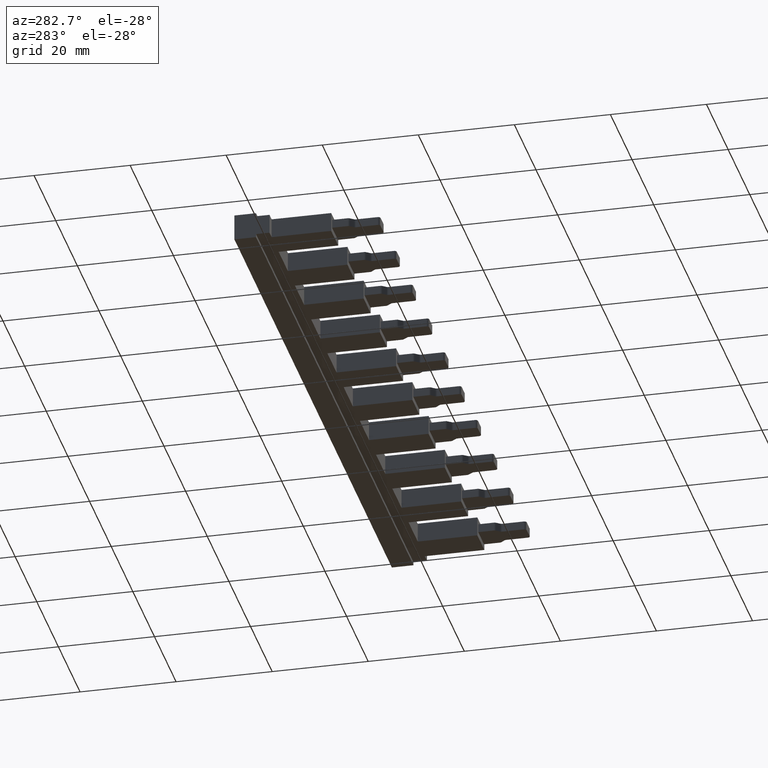
[diagram: clean part render]
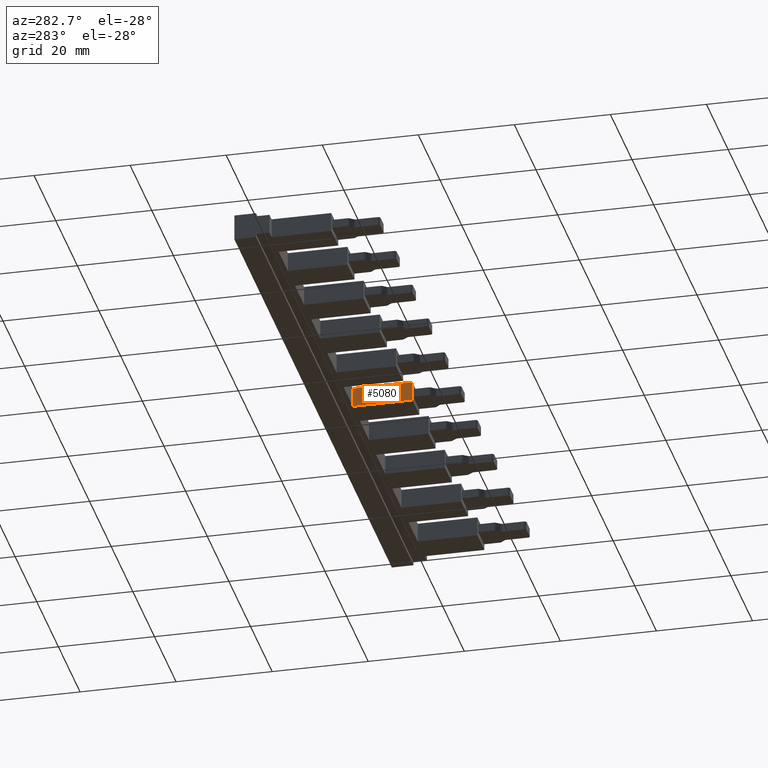
[diagram: same view with one face highlighted and labeled with its STEP entity id]
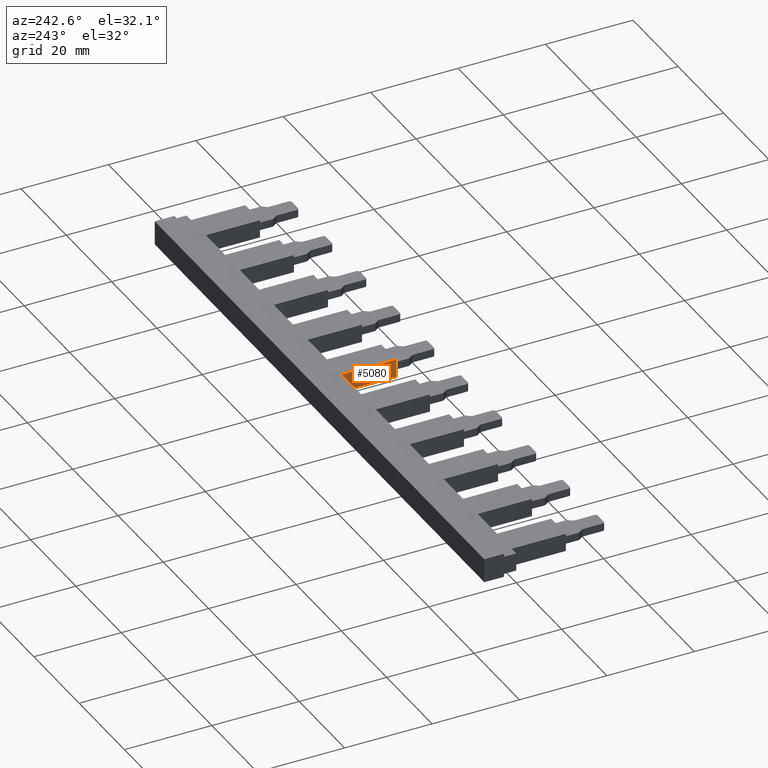
[diagram: same view with one face highlighted and labeled with its STEP entity id]
A machine part, auxiliary view. The second image highlights one B-rep face of the part: STEP entity #5080.
A second angle (auxiliary view) of the same face is appended — the face is thin or edge-on in the first view.
In plain terms, the highlighted planar face has unit normal (1, -0, 0).
Its self-contained STEP definition (entity closure, byte-faithful):
#138 = AXIS2_PLACEMENT_3D ( 'NONE', #2887, #2878, #2917 ) ;
#245 = VECTOR ( 'NONE', #3173, 1000.000000000000000 ) ;
#254 = VECTOR ( 'NONE', #3464, 1000.000000000000000 ) ;
#359 = VECTOR ( 'NONE', #3503, 1000.000000000000000 ) ;
#696 = VECTOR ( 'NONE', #5933, 1000.000000000000000 ) ;
#1047 = EDGE_LOOP ( 'NONE', ( #4134, #4230, #4204, #4227 ) ) ;
#1592 = CARTESIAN_POINT ( 'NONE',  ( 77.00000000000000000, -12.40000000000000200, 0.0000000000000000000 ) ) ;
#1633 = CARTESIAN_POINT ( 'NONE',  ( 77.00000000000000000, 0.0000000000000000000, 4.099999999999999600 ) ) ;
#1646 = CARTESIAN_POINT ( 'NONE',  ( 77.00000000000000000, 0.0000000000000000000, 0.0000000000000000000 ) ) ;
#1657 = CARTESIAN_POINT ( 'NONE',  ( 77.00000000000000000, -12.40000000000000200, 4.099999999999999600 ) ) ;
#2878 = DIRECTION ( 'NONE',  ( 1.000000000000000000, -0.0000000000000000000, 0.0000000000000000000 ) ) ;
#2879 = FACE_OUTER_BOUND ( 'NONE', #1047, .T. ) ;
#2887 = CARTESIAN_POINT ( 'NONE',  ( 77.00000000000000000, -12.50000000000000000, 4.099999999999999600 ) ) ;
#2916 = PLANE ( 'NONE',  #138 ) ;
#2917 = DIRECTION ( 'NONE',  ( 0.0000000000000000000, 0.0000000000000000000, -1.000000000000000000 ) ) ;
#3150 = LINE ( 'NONE', #3151, #245 ) ;
#3151 = CARTESIAN_POINT ( 'NONE',  ( 77.00000000000000000, 0.0000000000000000000, 4.099999999999999600 ) ) ;
#3173 = DIRECTION ( 'NONE',  ( -0.0000000000000000000, -0.0000000000000000000, 1.000000000000000000 ) ) ;
#3429 = LINE ( 'NONE', #3455, #254 ) ;
#3455 = CARTESIAN_POINT ( 'NONE',  ( 77.00000000000000000, -12.50000000000000000, 4.099999999999999600 ) ) ;
#3464 = DIRECTION ( 'NONE',  ( -0.0000000000000000000, -1.000000000000000000, -0.0000000000000000000 ) ) ;
#3503 = DIRECTION ( 'NONE',  ( 0.0000000000000000000, -1.000000000000000000, -0.0000000000000000000 ) ) ;
#3524 = LINE ( 'NONE', #3528, #359 ) ;
#3528 = CARTESIAN_POINT ( 'NONE',  ( 77.00000000000000000, 0.0000000000000000000, 0.0000000000000000000 ) ) ;
#4134 = ORIENTED_EDGE ( 'NONE', *, *, #5539, .F. ) ;
#4204 = ORIENTED_EDGE ( 'NONE', *, *, #5133, .F. ) ;
#4227 = ORIENTED_EDGE ( 'NONE', *, *, #5249, .T. ) ;
#4230 = ORIENTED_EDGE ( 'NONE', *, *, #5222, .F. ) ;
#4598 = VERTEX_POINT ( 'NONE', #1646 ) ;
#4630 = VERTEX_POINT ( 'NONE', #1633 ) ;
#4635 = VERTEX_POINT ( 'NONE', #1592 ) ;
#4664 = VERTEX_POINT ( 'NONE', #1657 ) ;
#5080 = ADVANCED_FACE ( 'NONE', ( #2879 ), #2916, .F. ) ;
#5133 = EDGE_CURVE ( 'NONE', #4598, #4630, #3150, .T. ) ;
#5222 = EDGE_CURVE ( 'NONE', #4630, #4664, #3429, .T. ) ;
#5249 = EDGE_CURVE ( 'NONE', #4598, #4635, #3524, .T. ) ;
#5539 = EDGE_CURVE ( 'NONE', #4664, #4635, #5920, .T. ) ;
#5919 = CARTESIAN_POINT ( 'NONE',  ( 77.00000000000000000, -12.40000000000000200, 4.099999999999999600 ) ) ;
#5920 = LINE ( 'NONE', #5919, #696 ) ;
#5933 = DIRECTION ( 'NONE',  ( 0.0000000000000000000, 0.0000000000000000000, -1.000000000000000000 ) ) ;